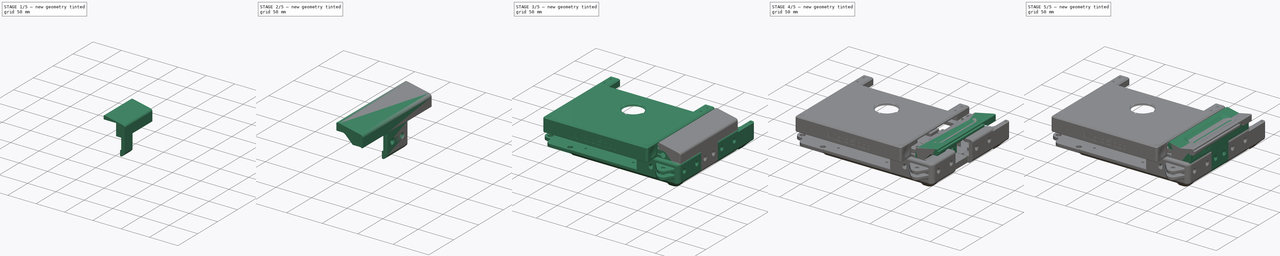
[diagram: build sequence overview — one tinted view per stage of 5, left to right]
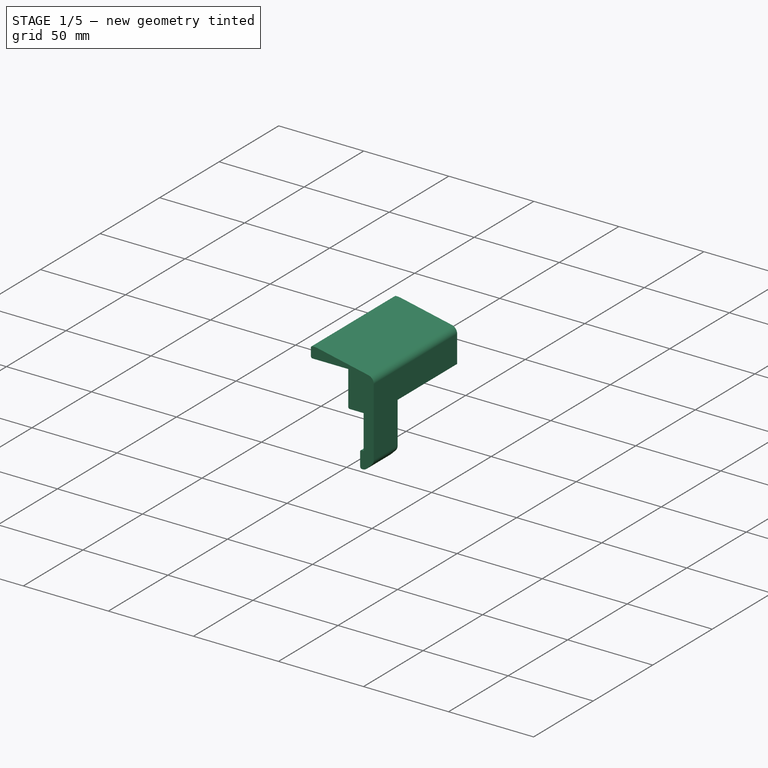
[diagram: stage 1 of 5 — iso view after this stage's code; geometry added in this stage tinted green]
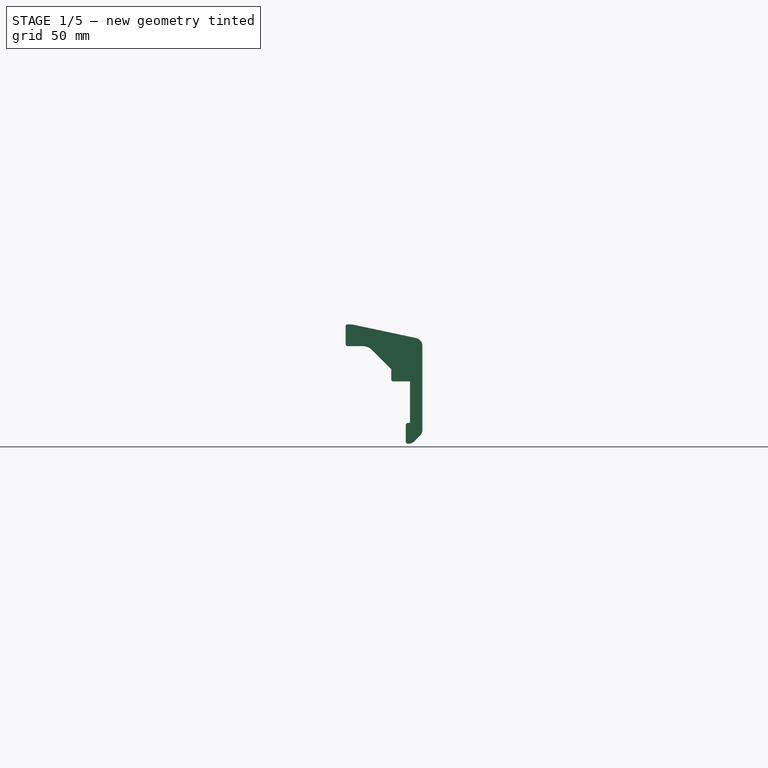
[diagram: stage 1 of 5 — front view after this stage's code; geometry added in this stage tinted green]
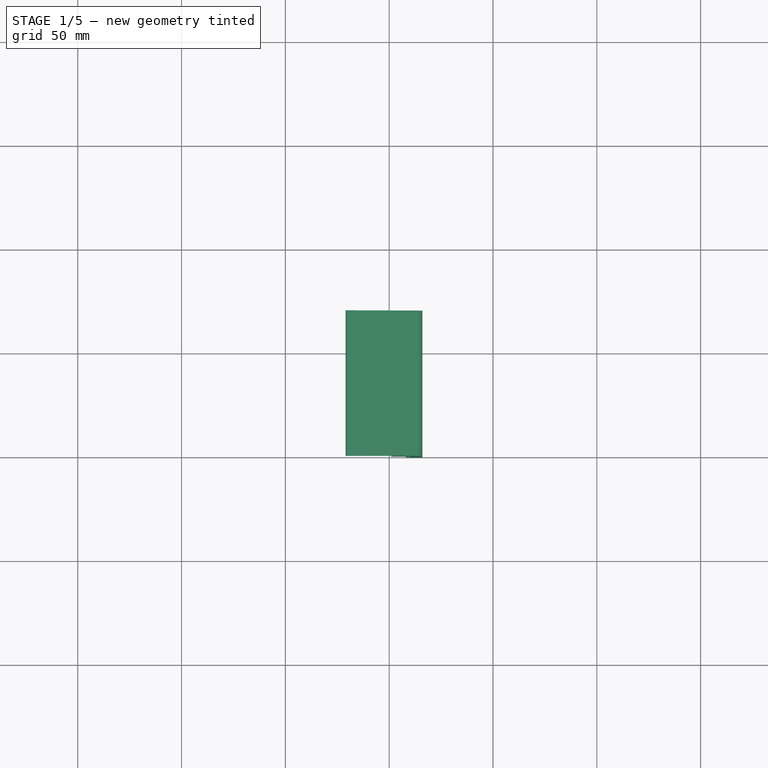
[diagram: stage 1 of 5 — top view after this stage's code; geometry added in this stage tinted green]
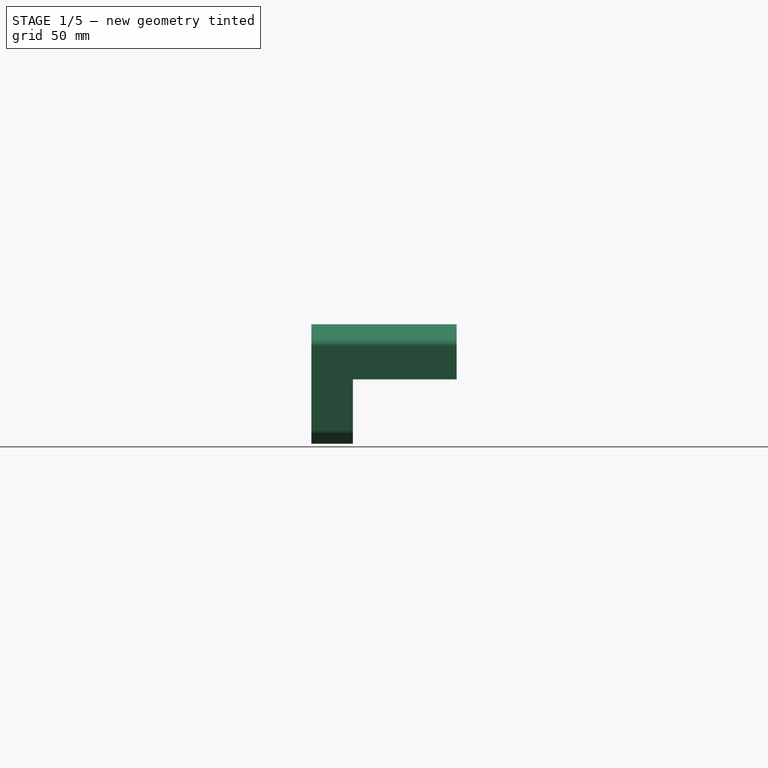
[diagram: stage 1 of 5 — right view after this stage's code; geometry added in this stage tinted green]
FCSTD DOCUMENT  (FreeCAD 0.16RUnknown)
Label: AxisShield
License: All rights reserved
LicenseURL: http://en.wikipedia.org/wiki/All_rights_reserved
objects: Part::FeaturePython×17, Part::Cut×8, Sketcher::SketchObject×6, Part::Feature×5, PartDesign::Pad×4, Part::Fillet×4, App::DocumentObjectGroup×3, Part::Box×2, PartDesign::Revolution×2, Part::Mirroring×2, Spreadsheet::Sheet×1, Part::Cylinder×1, Part::Part2DObjectPython×1, Part::Extrusion×1, Part::MultiFuse×1
note: 60 computed .brp shape members not serialized (recipe doc carries the construction recipe); baked Part::Feature solids carry a one-line shape summary decoded from their .brp

FEATURE [Part::Feature] Clone009001  label="Clone of LM8UU005"
  Placement = pos=(-110,0,-10) rot=(0,0,1;0rad)
  shape: bbox 15 x 24 x 15 mm, 3 faces (baked)
FEATURE [Part::Feature] Clone008001  label="Clone of LM8UU006"
  Placement = pos=(-110,0,-10) rot=(0,0,1;0rad)
  shape: bbox 15 x 24 x 15 mm, 3 faces (baked)
FEATURE [Part::Feature] Part__Mirroring002001  label="T slot extrusion 20x20x140.001 (Mirror #1)001"
  Placement = pos=(-110,0,-10) rot=(0,0,1;0rad)
  shape: bbox 20 x 140 x 20 mm, 51 faces (baked)
FEATURE [Part::Feature] Part__Mirroring001001  label="YBar (Mirror #2)001"
  Placement = pos=(-110,0,-10) rot=(0,0,1;0rad)
  shape: bbox 8 x 140 x 8 mm, 3 faces (baked)
FEATURE [Part::Feature] Part__Mirroring003001  label="4018X SNGL (Mirror #4)001"
  Placement = pos=(-110,0,-10) rot=(0,0,1;0rad)
  shape: bbox 40.13 x 132.8 x 41.15 mm, 30 faces (baked)
FEATURE [Sketcher::SketchObject] Sketch  label="Base"
  Placement = pos=(0,0,0) rot=(1,0,0;1.5708rad)
  sketch-geometry (14):
    g0: LineSegment StartX=-16.9774 StartY=37.2487 StartZ=0 EndX=12.8316 EndY=30.9126 EndZ=0
    g1: LineSegment StartX=16 StartY=27 StartZ=0 EndX=16 EndY=-13.3431 EndZ=0
    g2: LineSegment StartX=10 StartY=-10 StartZ=0 EndX=10 EndY=10 EndZ=0
    g3: LineSegment StartX=10 StartY=10 StartZ=0 EndX=-21 EndY=10 EndZ=0
    g4: LineSegment StartX=-21 StartY=10 StartZ=0 EndX=-21 EndY=37.3837 EndZ=0
    g5: ArcOfCircle CenterX=-19.3684 CenterY=26 CenterZ=0 NormalX=0 NormalY=0 NormalZ=1 Radius=11.5 StartAngle=1.36136 EndAngle=1.71316
    g6: ArcOfCircle CenterX=12 CenterY=27 CenterZ=0 NormalX=0 NormalY=0 NormalZ=1 Radius=4 StartAngle=6.28319 EndAngle=7.64454
    g7: LineSegment StartX=10 StartY=-10 StartZ=0 EndX=8 EndY=-10 EndZ=0
    g8: LineSegment StartX=8 StartY=-10 StartZ=0 EndX=8 EndY=-20 EndZ=0
    g9: LineSegment StartX=8 StartY=-20 StartZ=0 EndX=9.34315 EndY=-20 EndZ=0
    g10: LineSegment StartX=12.1716 StartY=-18.8284 StartZ=0 EndX=14.8284 EndY=-16.1716 EndZ=0
    g11: ArcOfCircle CenterX=9.34315 CenterY=-16 CenterZ=0 NormalX=0 NormalY=0 NormalZ=1 Radius=4 StartAngle=4.71239 EndAngle=5.49779
    g12: ArcOfCircle CenterX=12 CenterY=-13.3431 CenterZ=0 NormalX=0 NormalY=0 NormalZ=1 Radius=4 StartAngle=5.49779 EndAngle=6.28319
    g13: GeomPoint [constr] X=11 Y=-20 Z=0
  constraints (41):
    c: Coincident(g2,g3)
    c: Coincident(g3,g4)
    c: Horizontal(g3)
    c: Vertical(g2)
    c: Vertical(g1)
    c: Vertical(g4)
    c: DistanceY(g5) = 26
    c: Coincident(g0,g5)
    c: Tangent(g5,g0)
    c: DistanceX(g2) = 10
    c: DistanceY(g2) = 10
    c: Coincident(g4,g5)
    c: Angle(g0) = -0.20944  'ShieldAngle'
    c: Coincident(g6,g1)  'Constraint18'
    c: Coincident(g6,g0)  'Constraint17'
    c: Tangent(g6,g1)  'Constraint21'
    c: Tangent(g0,g6)  'Constraint20'
    c: Radius(g6) = 4  'Constraint19'
    c: DistanceY(g6) = 27
    c: DistanceX(g3,g3) = 31
    c: Radius(g5) = 11.5
    c: Coincident(g7,g8)
    c: Coincident(g8,g9)
    c: Horizontal(g9)
    c: Coincident(g2,g7)
    c: Horizontal(g7)
    c: Vertical(g8)
    c: DistanceY(g2,g2) = 20
    c: DistanceX(g7,g7) = 2
    c: Angle(g1,g10) = 2.35619
    c: DistanceY(g8,g8) = 10
    c: Tangent(g9,g11) = -1.5708
    c: Tangent(g10,g11) = -1.5708
    c: Radius(g11) = 4
    c: Tangent(g10,g12) = -1.5708
    c: Tangent(g1,g12) = 1.5708
    c: Radius(g12) = 4
    c: DistanceX(g1) = 16
    c: PointOnObject(g13,g9)
    c: PointOnObject(g13,g10)
    c: DistanceX(g13) = 11
FEATURE [PartDesign::Pad] Pad  label="Base001"
  Length = 70
  Length2 = 100
  Placement = pos=(0,0,0) rot=(1,0,0;1.5708rad)
  Reversed = true
  Sketch = -> Sketch
  Type = 0
FEATURE [Part::Box] Box001  label="AxisSpace"
  Height = 39
  Length = 31
  Placement = pos=(1,0,0) rot=(0,-1,0;1.5708rad)
  Width = 50
FEATURE [Part::Cut] Cut005  label="AxisSpaceCut"
  Base = -> Pad
  Tool = -> Box001
FEATURE [PartDesign::Pad] Pad001  label="AxisEndSpace001"
  Length = 50
  Length2 = 100
  Placement = pos=(0,50,0) rot=(1,0,0;1.5708rad)
  Reversed = true
  Sketch = -> Sketch003
  Type = 0
FEATURE [Part::Cut] Cut006  label="AxisEndCut"
  Base = -> Cut005
  Tool = -> Pad001
FEATURE [Part::Fillet] Fillet005  label="RadialFillet"
  Base = -> Cut006
  Edges = 7 edges r=1: [Edge5,Edge9,Edge11,Edge39,Edge53,Edge55,Edge56]
FEATURE [PartDesign::Pad] Pad002  label="BackFrameSpace001"
  Length = 50
  Length2 = 100
  Placement = pos=(0,70,0) rot=(0,0.707107,0.707107;3.14159rad)
  Reversed = true
  Sketch = -> Sketch005
  Type = 0
FEATURE [Part::Cut] Cut007  label="BackFrameCut"
  Base = -> Fillet005
  Tool = -> Pad002
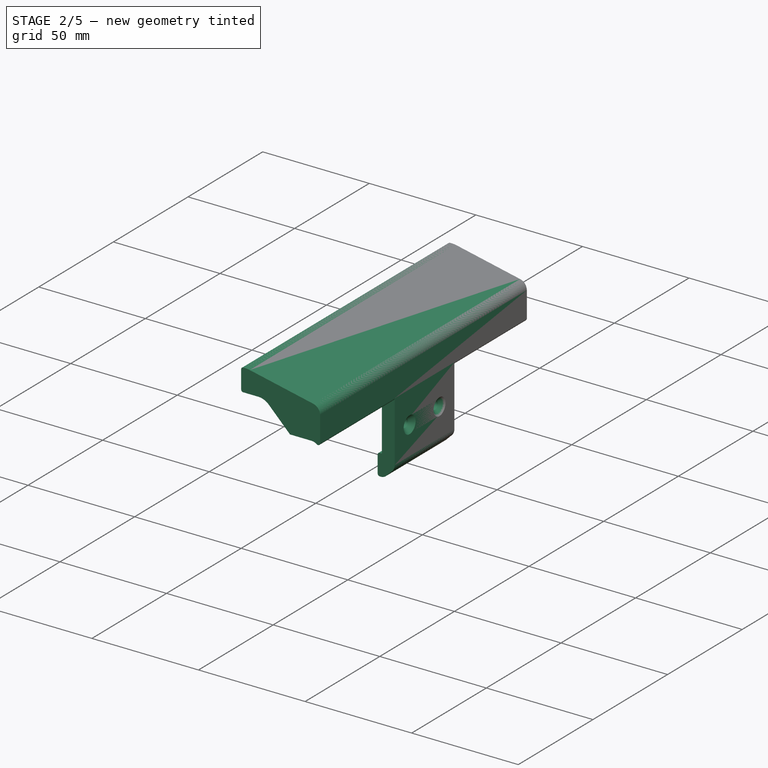
[diagram: stage 2 of 5 — iso view after this stage's code; geometry added in this stage tinted green]
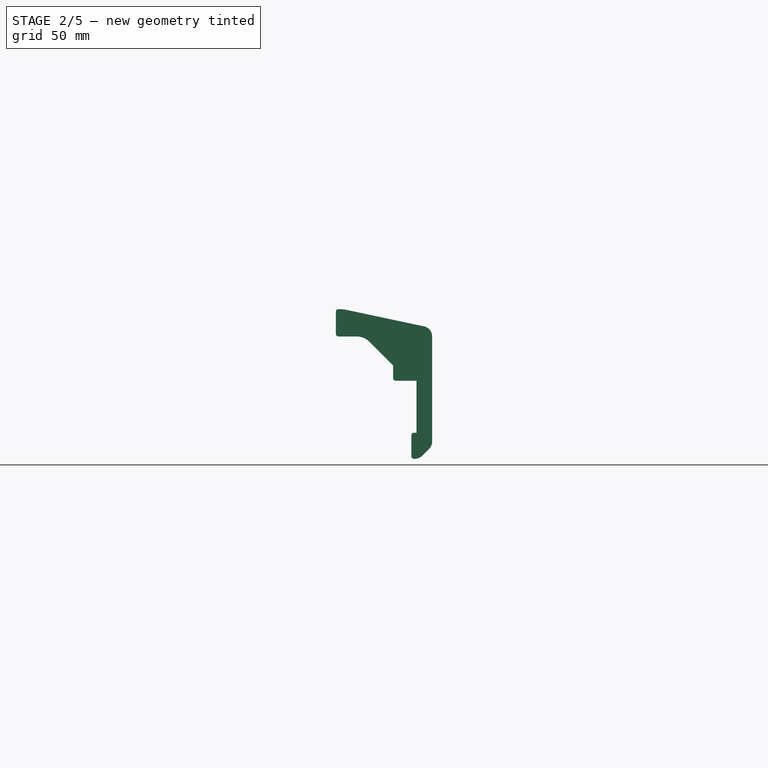
[diagram: stage 2 of 5 — front view after this stage's code; geometry added in this stage tinted green]
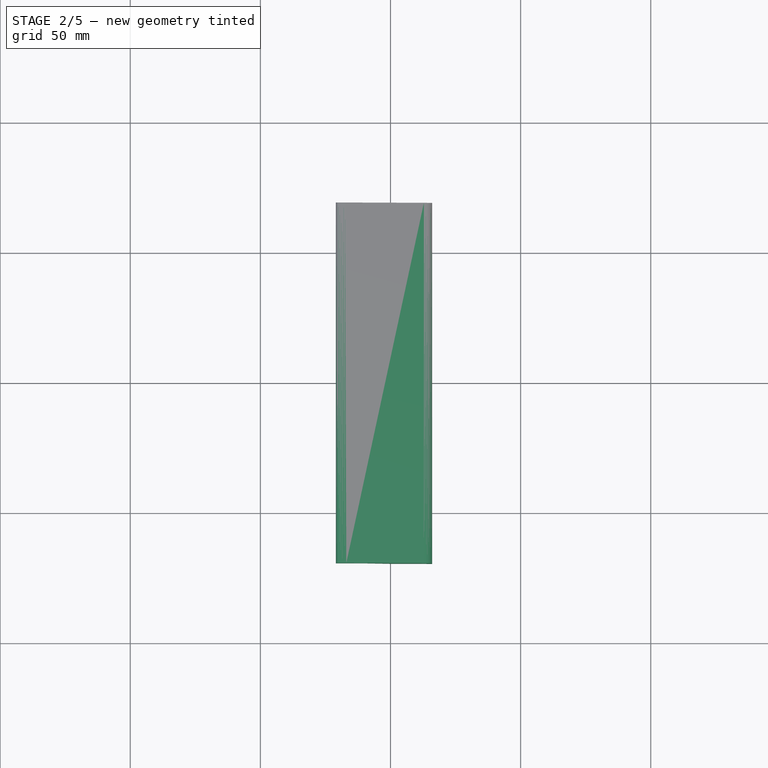
[diagram: stage 2 of 5 — top view after this stage's code; geometry added in this stage tinted green]
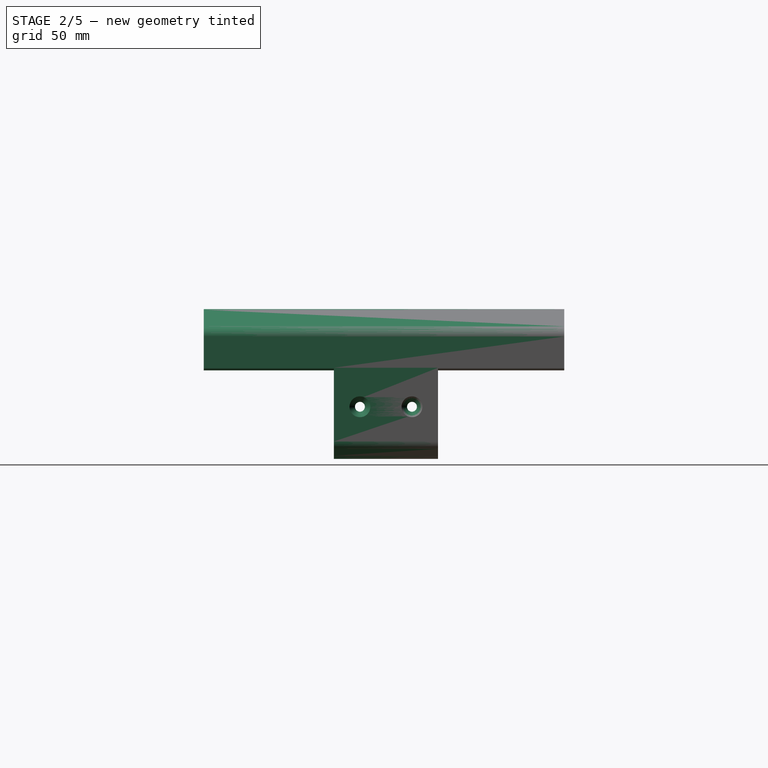
[diagram: stage 2 of 5 — right view after this stage's code; geometry added in this stage tinted green]
FEATURE [Spreadsheet::Sheet] Spreadsheet  label="pars"
  cells = A1=Bolts and Nuts; B1=Value; D1=Components; E1=Value; A2=Thread Tight Tolerance (Radius, ratio); B2(ThrTighRatio)=0.96; D2=Tight Cilinder Tolerances (Radius, mm); E2(CilTight)=0.1; A3=Thread Tight Tolerance (Radius, mm); B3(ThrTightmm)=0.1; D3=Loose Cilinder Tolerances (Radius, mm); E3(CilLoose)=0.1; A5=Nut Slot Width Clearance (mm); B5(NutWidthClearmm)=0.1; A6=Nut Slot Thickess Clearance (mm); B6(NutThickClearmm)=0.1; A13=Particular parameters; B13=Value; A14=Upper Cover Limit Clearance; B14(UCLClear)=1
FEATURE [Sketcher::SketchObject] Sketch003  label="AxisEndSpace"
  Placement = pos=(0,50,0) rot=(1,0,0;1.5708rad)
  sketch-geometry (6):
    g0: ArcOfCircle CenterX=-13 CenterY=20 CenterZ=0 NormalX=0 NormalY=0 NormalZ=1 Radius=7 StartAngle=0.785393 EndAngle=1.5708
    g1: LineSegment StartX=-8.05023 StartY=24.9497 StartZ=0 EndX=2.89949 EndY=14 EndZ=0
    g2: LineSegment StartX=-37.1005 StartY=6 StartZ=0 EndX=-37.1005 EndY=27 EndZ=0
    g3: LineSegment StartX=-37.1005 StartY=6 StartZ=0 EndX=2.89949 EndY=6 EndZ=0
    g4: LineSegment StartX=2.89949 StartY=6 StartZ=0 EndX=2.89949 EndY=14 EndZ=0
    g5: LineSegment StartX=-37.1005 StartY=27 StartZ=0 EndX=-13 EndY=27 EndZ=0
  constraints (19):
    c: DistanceY(g0) = 20
    c: DistanceX(g0) = -13
    c: Coincident(g0,g1)
    c: Tangent(g0,g1)
    c: Vertical(g2)
    c: Radius(g0) = 7
    c: Angle(g1) = -0.785398
    c: DistanceY(g1) = 14
    c: Coincident(g3,g4)
    c: Coincident(g4,g1)
    c: Coincident(g3,g2)
    c: Horizontal(g3)
    c: Vertical(g4)
    c: DistanceY(g2) = 6
    c: DistanceX(g3,g3) = 40
    c: Horizontal(g5)
    c: Coincident(g5,g0)
    c: Tangent(g5,g0)
    c: Coincident(g5,g2)
FEATURE [Sketcher::SketchObject] Sketch005  label="BackFrameSpace"
  Placement = pos=(0,70,0) rot=(0,0.707107,0.707107;3.14159rad)
  sketch-geometry (5):
    g0: LineSegment StartX=15 StartY=-30 StartZ=0 EndX=-16 EndY=-30 EndZ=0
    g1: LineSegment StartX=-16 StartY=-30 StartZ=0 EndX=-16 EndY=11 EndZ=0
    g2: LineSegment StartX=-12 StartY=15 StartZ=0 EndX=15 EndY=15 EndZ=0
    g3: LineSegment StartX=15 StartY=15 StartZ=0 EndX=15 EndY=-30 EndZ=0
    g4: ArcOfCircle CenterX=-12 CenterY=11 CenterZ=0 NormalX=0 NormalY=0 NormalZ=1 Radius=4 StartAngle=1.5708 EndAngle=3.14159
  constraints (14):
    c: Coincident(g0,g1)
    c: Coincident(g2,g3)
    c: Coincident(g3,g0)
    c: Horizontal(g0)
    c: Horizontal(g2)
    c: Vertical(g1)
    c: Vertical(g3)
    c: DistanceY(g2) = 15
    c: DistanceX(g0) = -16
    c: DistanceX(g2) = 15
    c: DistanceY(g0) = -30
    c: Tangent(g2,g4) = 1.5708
    c: Tangent(g1,g4) = 1.5708
    c: Radius(g4) = 4
FEATURE [Part::Box] Box  label="NemaCut"
  Height = 54
  Length = 40
  Placement = pos=(16,110,10) rot=(0,0,1;3.14159rad)
  Width = 41.5
FEATURE [Sketcher::SketchObject] Sketch007  label="M4DIN7991Bolt"
  expr: Constraints[10] = 2 - pars.CilTight
  sketch-geometry (5):
    g0: LineSegment StartX=0 StartY=0 StartZ=0 EndX=4 EndY=0 EndZ=0
    g1: LineSegment StartX=4 StartY=0 StartZ=0 EndX=1.9 EndY=-2.1 EndZ=0
    g2: LineSegment StartX=1.9 StartY=-2.1 StartZ=0 EndX=1.9 EndY=-25 EndZ=0
    g3: LineSegment StartX=1.9 StartY=-25 StartZ=0 EndX=0 EndY=-25 EndZ=0
    g4: LineSegment StartX=0 StartY=-25 StartZ=0 EndX=0 EndY=0 EndZ=0
  constraints (14):
    c: Coincident(g0,g1)
    c: Coincident(g1,g2)
    c: Coincident(g2,g3)
    c: Coincident(g3,g4)
    c: Coincident(g4,g0)
    c: Vertical(g4)
    c: Vertical(g2)
    c: Horizontal(g0)
    c: Horizontal(g3)
    c: Coincident(g0,g-1)
    c: DistanceX(g3,g3) = 1.9
    c: Angle(g0,g1) = 0.785398
    c: DistanceX(g0,g0) = 4
    c: DistanceY(g4,g4) = 25
FEATURE [PartDesign::Revolution] Revolution001  label="M4DIN7991Bolt001"
  Angle = 360
  Axis = (0,1,0)
  Base = (0,0,0)
  ReferenceAxis = -> Sketch007 [V_Axis]
  Reversed = true
  Sketch = -> Sketch007
FEATURE [App::DocumentObjectGroup] Group001  label="Component_src"
  Group = -> [Revolution,Cylinder,ShapeString,Extrude,Revolution001]
FEATURE [Part::FeaturePython] Clone022003003008002009024020009009  label="Clone of M4DIN7991Bolt001"  # Draft clone (typed FeaturePython)
  Objects = -> [Revolution001]
  Placement = pos=(16,10,0) rot=(0,0,-1;1.5708rad)
  Scale = (1,1,1)
FEATURE [Part::Fillet] Fillet002  label="AntiCreaseFillet"
  Base = -> Cut007
  Edges = 1 edges r=1: [Edge43]
FEATURE [Part::Cut] Cut  label="FixBoltCut"
  Base = -> Fillet002
  Tool = -> Clone022003003008002009024020009009
FEATURE [Part::Mirroring] Part__Mirroring  label="FixBoltCut (Mirror #1)"
  Base = (0,0,0)
  Normal = (0,1,0)
  Source = -> Cut
FEATURE [Part::MultiFuse] Fusion  label="Mirroring"
  Shapes = -> [Part__Mirroring,Cut]
FEATURE [Part::Cut] Cut001
  Base = -> Fusion
  Tool = -> Box
FEATURE [Part::FeaturePython] refine002  label="refine_Cut001"  # WARN: FeaturePython — macro-defined, semantics opaque (R4)
  Base = -> Cut001
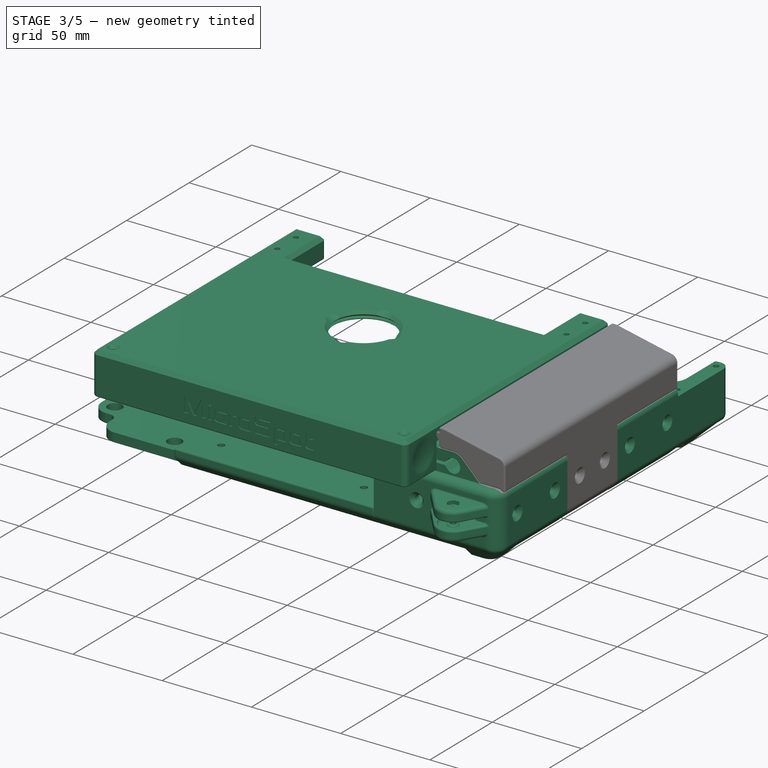
[diagram: stage 3 of 5 — iso view after this stage's code; geometry added in this stage tinted green]
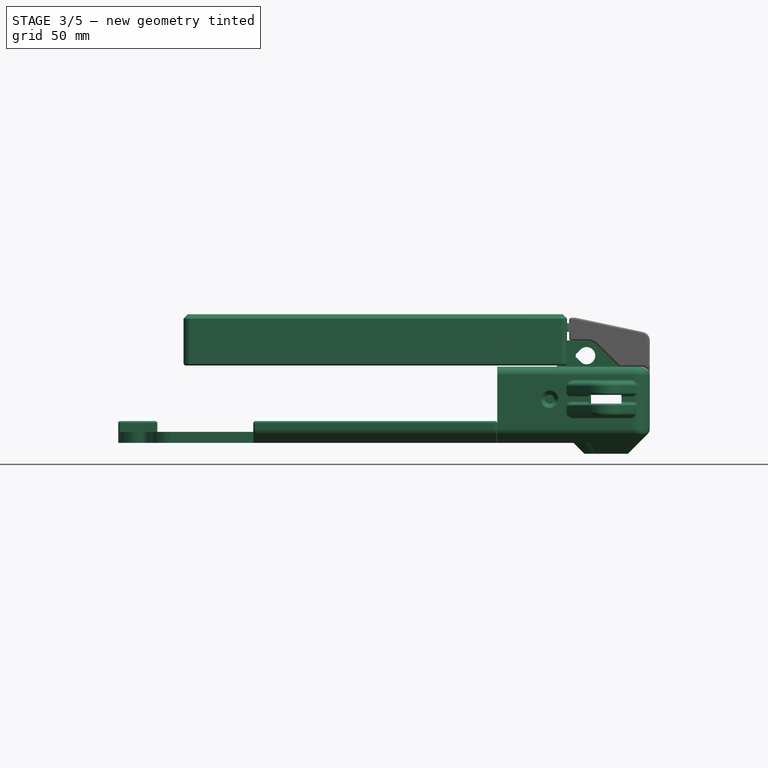
[diagram: stage 3 of 5 — front view after this stage's code; geometry added in this stage tinted green]
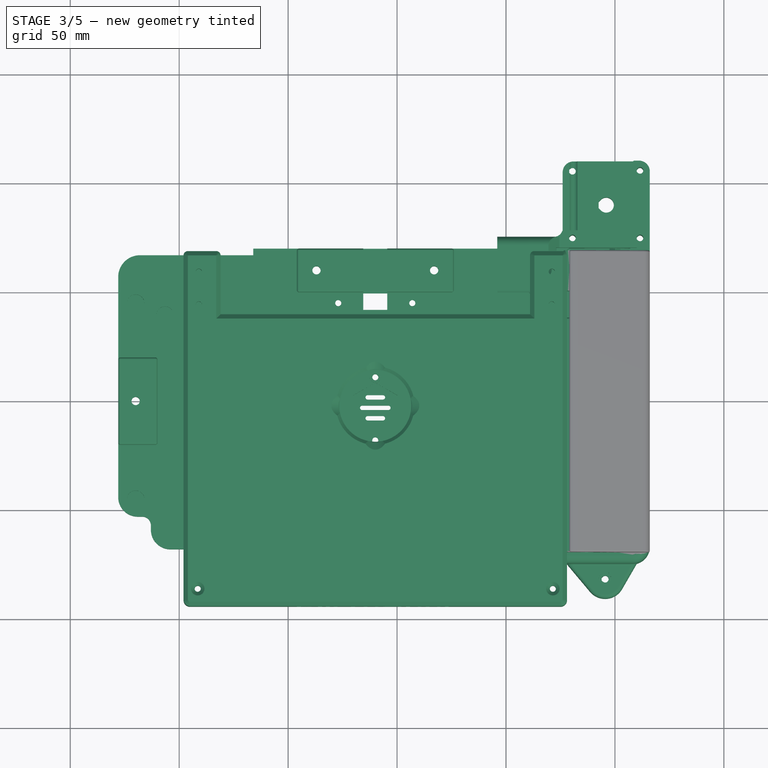
[diagram: stage 3 of 5 — top view after this stage's code; geometry added in this stage tinted green]
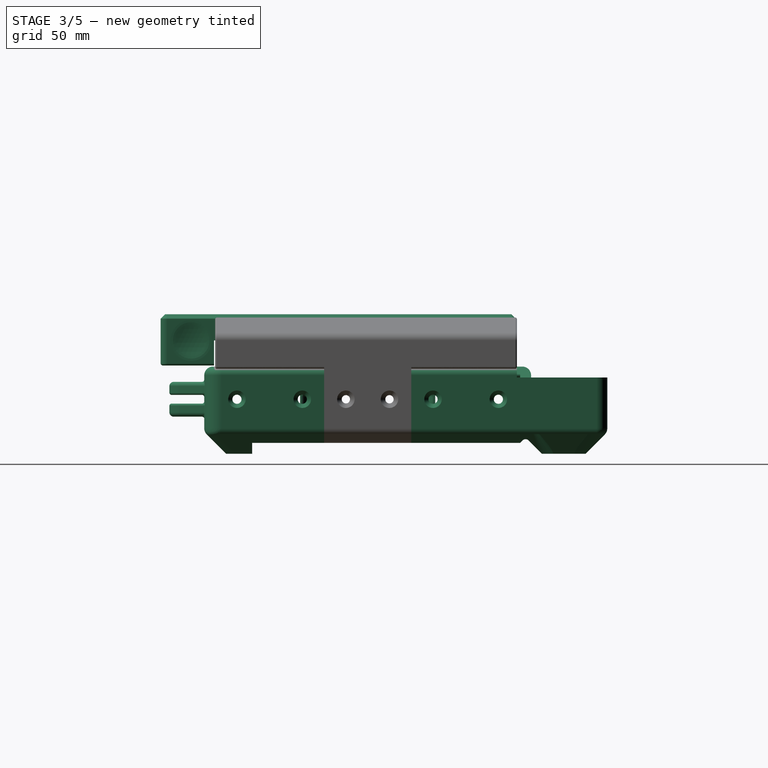
[diagram: stage 3 of 5 — right view after this stage's code; geometry added in this stage tinted green]
FEATURE [Part::FeaturePython] RYCarriage_step1_01  label="RYCarriage"  # a2plus imported part (geometry in sourceFile) (typed FeaturePython)
  Placement = pos=(-40,0,0) rot=(0,0,1;0rad)
  fixedPosition = true
  sourceFile = ./../../Step/Printed/Axes/YCarriage/RYCarriage.step
  timeLastImport = 1.5206e+09
  updateColors = true
FEATURE [Part::FeaturePython] FrontCorner_01  # a2plus imported part (geometry in sourceFile) (typed FeaturePython)
  Placement = pos=(0,-82,0) rot=(0,0,1;0rad)
  fixedPosition = false
  sourceFile = ./FrontCorner.fcstd
  timeLastImport = 1.52267e+09
  updateColors = true
FEATURE [Part::FeaturePython] LowerCover_01  # a2plus imported part (geometry in sourceFile) (typed FeaturePython)
  Placement = pos=(-110,-3,-15) rot=(0,0,1;0rad)
  fixedPosition = false
  sourceFile = ./LowerCover.fcstd
  timeLastImport = 1.52951e+09
  updateColors = true
FEATURE [Part::FeaturePython] BackCorner_01  # a2plus imported part (geometry in sourceFile) (typed FeaturePython)
  Placement = pos=(-4,90,10) rot=(0,0,1;0rad)
  fixedPosition = false
  sourceFile = ./BackCorner.fcstd
  timeLastImport = 1.52292e+09
  updateColors = true
FEATURE [Part::FeaturePython] UpperCover_01  label="UpperCover"  # a2plus imported part (geometry in sourceFile) (typed FeaturePython)
  Placement = pos=(-110,-3,35) rot=(0,0,1;0rad)
  fixedPosition = false
  sourceFile = ./../UpperLid/UpperCover.fcstd
  timeLastImport = 1.52943e+09
  updateColors = true
FEATURE [App::DocumentObjectGroup] Group  label="Reference"
  Group = -> [Clone009001,Clone008001,Part__Mirroring002001,Part__Mirroring001001,Part__Mirroring003001,FrontCorner_01,LowerCover_01,BackCorner_01,RYCarriage_step1_01,UpperCover_01]
FEATURE [Sketcher::SketchObject] Sketch008  label="UpperCoverLimit"
  Placement = pos=(0,-70,0) rot=(1,0,0;1.5708rad)
  Support = -> refine002 [Face5]
  sketch-geometry (4):
    g0: LineSegment StartX=-20 StartY=35 StartZ=0 EndX=-24 EndY=35 EndZ=0
    g1: LineSegment StartX=-24 StartY=35 StartZ=0 EndX=-24 EndY=31 EndZ=0
    g2: LineSegment StartX=-24 StartY=31 StartZ=0 EndX=-20 EndY=31 EndZ=0
    g3: LineSegment StartX=-20 StartY=31 StartZ=0 EndX=-20 EndY=35 EndZ=0
  constraints (12):
    c: Coincident(g0,g1)
    c: Coincident(g1,g2)
    c: Coincident(g2,g3)
    c: Coincident(g3,g0)
    c: Horizontal(g0)
    c: Horizontal(g2)
    c: Vertical(g1)
    c: Vertical(g3)
    c: DistanceY(g0) = 35
    c: DistanceY(g1,g1) = 4
    c: DistanceX(g0) = -20
    c: DistanceX(g0,g0) = 4
FEATURE [PartDesign::Pad] Pad003  label="UpperCoverLimit001"
  Length = 107.5
  Length2 = 100
  Reversed = true
  Sketch = -> Sketch008
  Type = 0
  expr: Length = 108.5 - pars.UCLClear
FEATURE [Part::FeaturePython] refine003  label="refine_UpperCoverLimit001"  # WARN: FeaturePython — macro-defined, semantics opaque (R4)
  Base = -> Pad003
FEATURE [Part::Fillet] Fillet003  label="NiceFillet002"
  Base = -> refine003
  Edges = 10 edges r=0.8: [Edge19,Edge29,Edge30,Edge31,Edge32,Edge33,Edge34,Edge59,Edge80,Edge137]
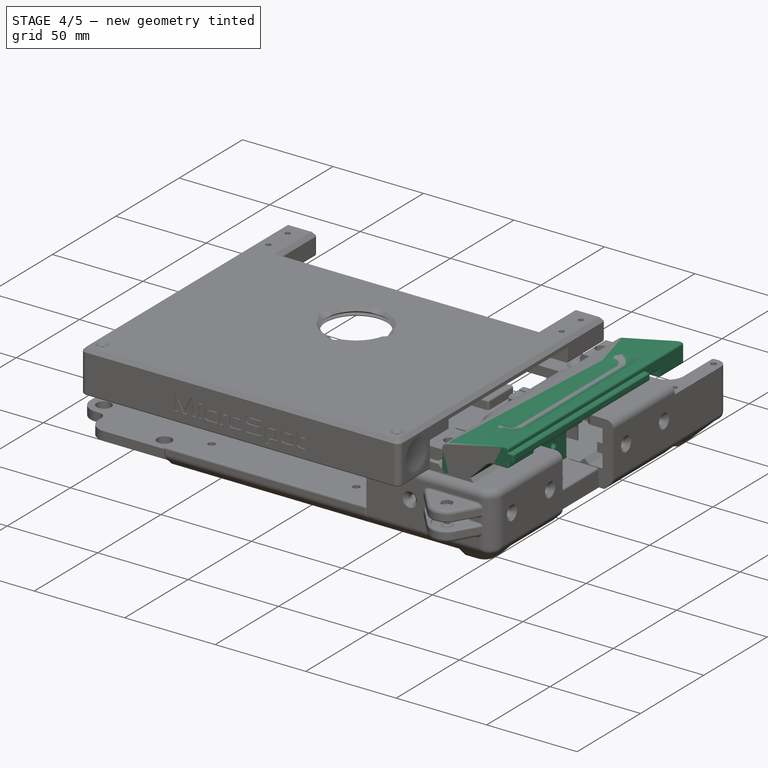
[diagram: stage 4 of 5 — iso view after this stage's code; geometry added in this stage tinted green]
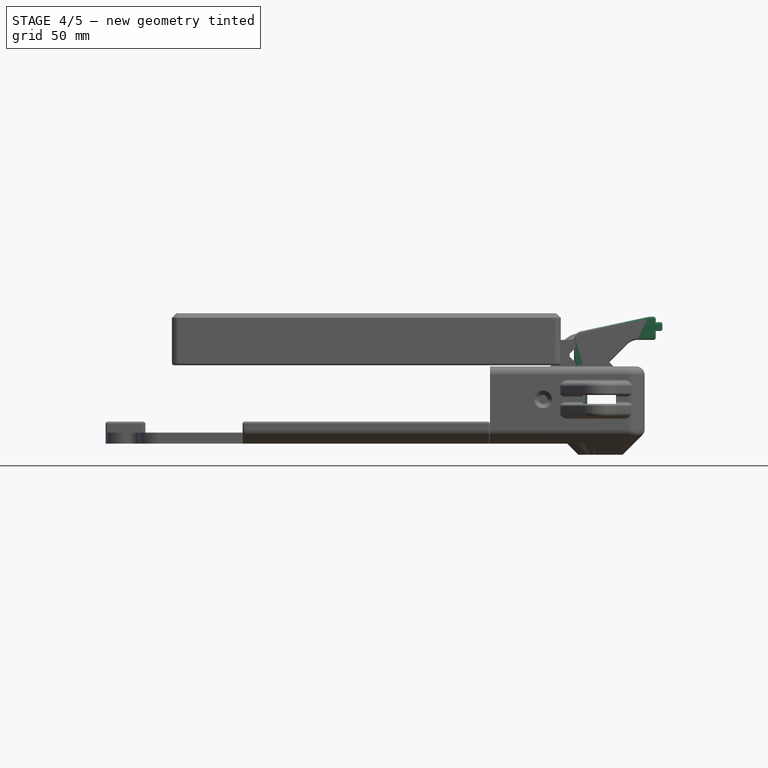
[diagram: stage 4 of 5 — front view after this stage's code; geometry added in this stage tinted green]
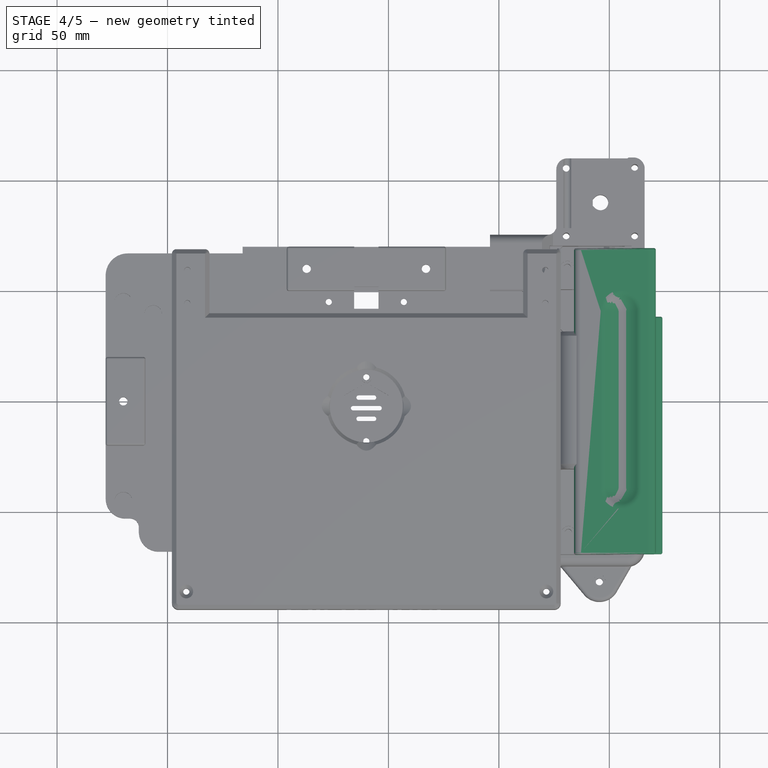
[diagram: stage 4 of 5 — top view after this stage's code; geometry added in this stage tinted green]
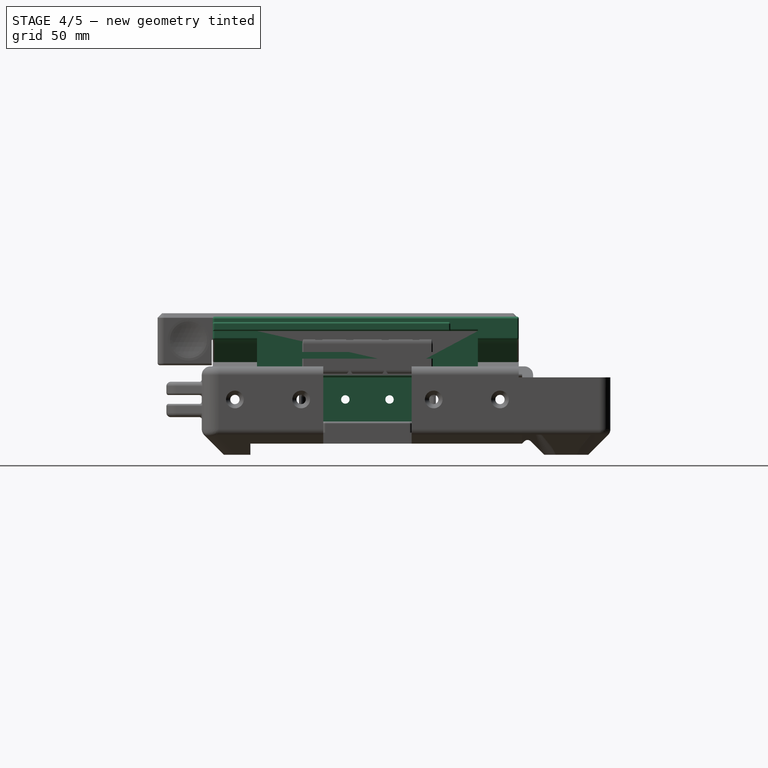
[diagram: stage 4 of 5 — right view after this stage's code; geometry added in this stage tinted green]
FEATURE [Sketcher::SketchObject] Sketch006  label="HandGrip"
  Placement = pos=(0,0,0) rot=(0.57735,0.57735,0.57735;2.0944rad)
  sketch-geometry (4):
    g0: ArcOfCircle CenterX=-40 CenterY=0 CenterZ=0 NormalX=0 NormalY=0 NormalZ=1 Radius=14 StartAngle=1.5708 EndAngle=3.14159
    g1: ArcOfCircle CenterX=40 CenterY=0 CenterZ=0 NormalX=0 NormalY=0 NormalZ=1 Radius=14 StartAngle=0 EndAngle=1.5708
    g2: LineSegment StartX=-54 StartY=0 StartZ=0 EndX=54 EndY=0 EndZ=0
    g3: LineSegment StartX=-40 StartY=14 StartZ=0 EndX=40 EndY=14 EndZ=0
  constraints (11):
    c: Tangent(g0,g3) = 1.5708
    c: Tangent(g3,g1) = 1.5708
    c: Horizontal(g2)
    c: Equal(g0,g1)
    c: PointOnObject(g0,g-1)
    c: Symmetric(g1,g0,g-2)
    c: DistanceX(g0,g1) = 80
    c: Radius(g1) = 14
    c: Coincident(g0,g2)
    c: Coincident(g1,g2)
    c: PointOnObject(g0,g-1)
FEATURE [PartDesign::Revolution] Revolution  label="HandGrip001"
  Angle = 360
  Axis = (0,1,0)
  Base = (0,0,0)
  Placement = pos=(0,0,0) rot=(0.57735,0.57735,0.57735;2.0944rad)
  ReferenceAxis = -> Sketch006 [H_Axis]
  Sketch = -> Sketch006
FEATURE [Part::FeaturePython] Clone009003  label="Clone of HandGrip001"  # Draft clone (typed FeaturePython)
  Objects = -> [Revolution]
  Placement = pos=(-3,0,46) rot=(0.57735,0.57735,0.57735;2.0944rad)
  Scale = (1,1,1)
FEATURE [Part::Part2DObjectPython] ShapeString  label="Sign"  # Draft 2D object (typed FeaturePython)
  FontFile = ./../../Fonts/Xolonium-Regular.otf
  Size = 3
  String = MicroSpot
  Tracking = 0
FEATURE [Part::Extrusion] Extrude  label="Sign001"
  Base = -> ShapeString
  Dir = (0,0,0.5)
  Solid = true
FEATURE [Part::FeaturePython] Clone022003003008002009024020009004  label="Clone of Sign002"  # Draft clone (typed FeaturePython)
  Objects = -> [Extrude]
  Placement = pos=(-15.5,-21,19) rot=(0.57735,-0.57735,-0.57735;2.0944rad)
  Scale = (1,1,1)
FEATURE [Part::Cut] Cut002  label="HandGripCut"
  Base = -> Fillet003
  Tool = -> Clone009003
FEATURE [Part::Fillet] Fillet004  label="NiceFillet003"
  Base = -> Cut002
  Edges = 1 edges r=5: [Edge158]
FEATURE [Part::Mirroring] Part__Mirroring003002  label="NiceFillet003 (Mirror #2)"
  Base = (0,0,0)
  Normal = (1,0,0)
  Source = -> Fillet004
FEATURE [Part::FeaturePython] Clone022003003008002009024020009006  label="Lpart"  # Draft clone (typed FeaturePython)
  Objects = -> [Part__Mirroring003002]
  Scale = (1,1,1)
FEATURE [Part::Cut] Cut004  label="LSign"
  Base = -> Clone022003003008002009024020009006
  Tool = -> Clone022003003008002009024020009004
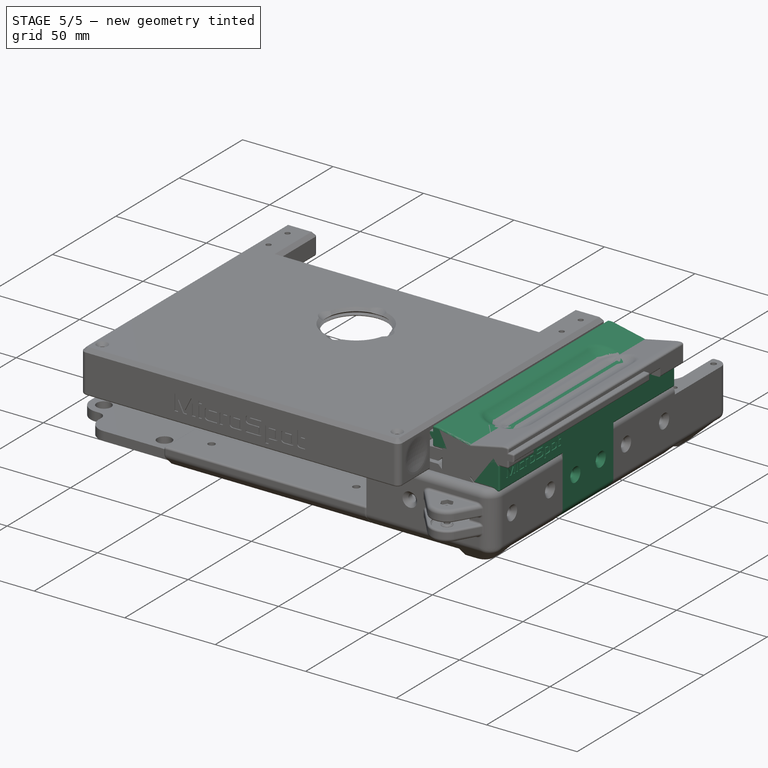
[diagram: stage 5 of 5 — iso view after this stage's code; geometry added in this stage tinted green]
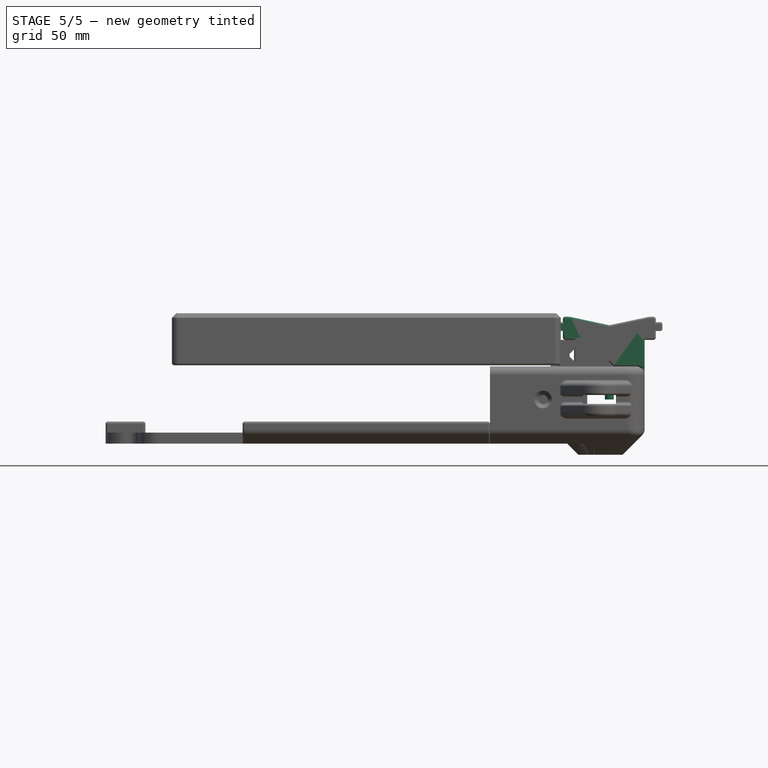
[diagram: stage 5 of 5 — front view after this stage's code; geometry added in this stage tinted green]
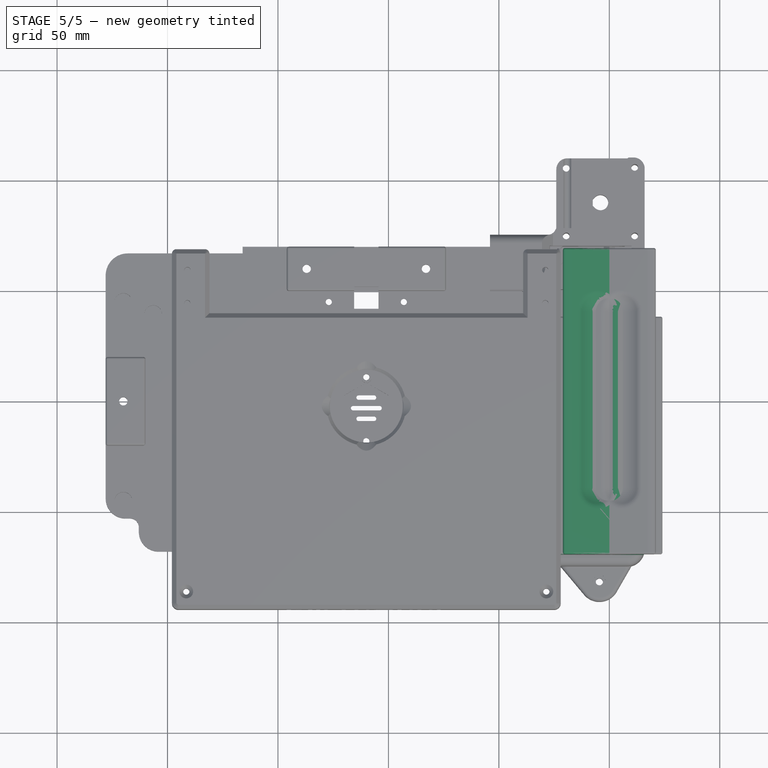
[diagram: stage 5 of 5 — top view after this stage's code; geometry added in this stage tinted green]
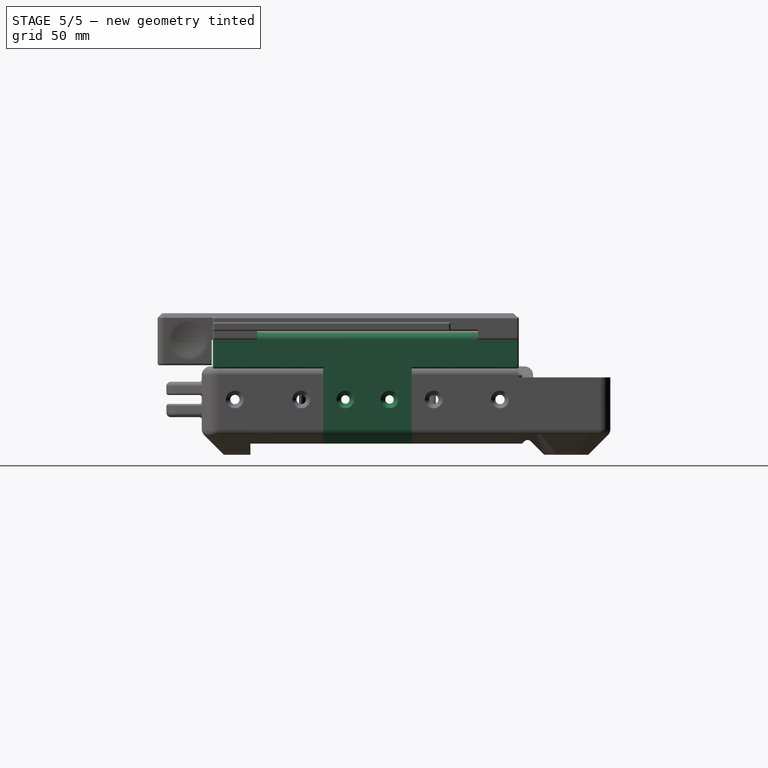
[diagram: stage 5 of 5 — right view after this stage's code; geometry added in this stage tinted green]
FEATURE [Part::Cylinder] Cylinder  label="M4Thread"
  Angle = 360
  Height = 10
  Radius = 2
FEATURE [Part::FeaturePython] Clone022003003008002009024020009003  label="Clone of Sign001"  # Draft clone (typed FeaturePython)
  Objects = -> [Extrude]
  Placement = pos=(15.5,-65,19) rot=(0.57735,0.57735,0.57735;2.0944rad)
  Scale = (1,1,1)
FEATURE [Part::FeaturePython] Clone022003003008002009024020009005  label="Rpart"  # Draft clone (typed FeaturePython)
  Objects = -> [Fillet004]
  Scale = (1,1,1)
FEATURE [Part::Cut] Cut003  label="RSign"
  Base = -> Clone022003003008002009024020009005
  Tool = -> Clone022003003008002009024020009003
FEATURE [Part::FeaturePython] refine  label="refine_RSign"  # WARN: FeaturePython — macro-defined, semantics opaque (R4)
  Base = -> Cut003
FEATURE [Part::FeaturePython] refine001  label="refine_LSign"  # WARN: FeaturePython — macro-defined, semantics opaque (R4)
  Base = -> Cut004
FEATURE [App::DocumentObjectGroup] Grupo  label="src"
  Group = -> [Cut001,Cut002,Fillet004,Part__Mirroring003002,Cut003,Cut004,refine,refine001,Cut006,refine003,refine002]
FEATURE [Part::FeaturePython] Clone  label="RAxisShield"  # Draft clone (typed FeaturePython)
  Objects = -> [refine]
  Scale = (1,1,1)
FEATURE [Part::FeaturePython] Clone022003003008002009024020009010  label="LAxisShield"  # Draft clone (typed FeaturePython)
  Objects = -> [refine001]
  Scale = (1,1,1)
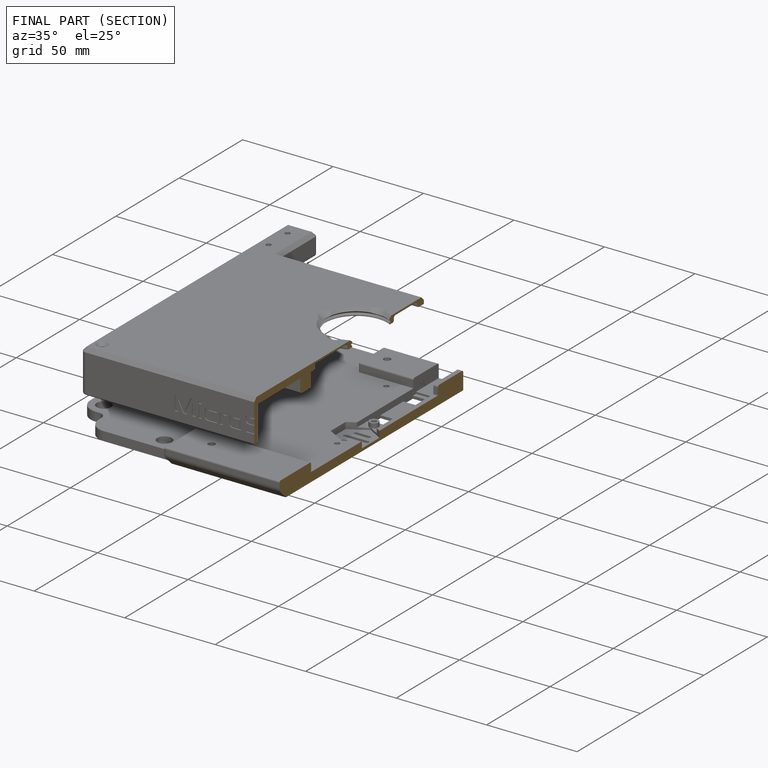
[diagram: finished part — half-section view (interior)]
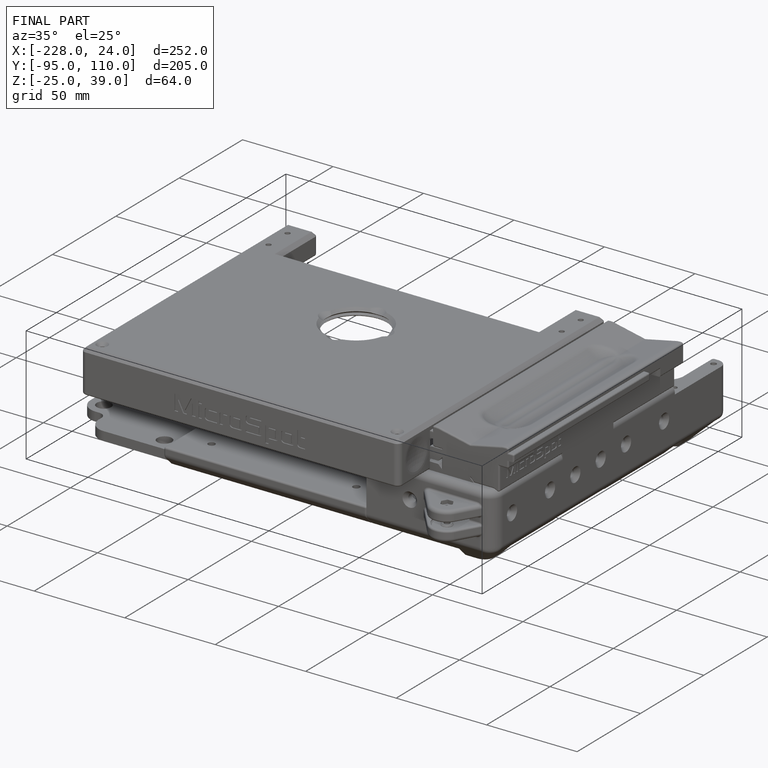
[diagram: finished part — iso view with bounding-box wireframe]
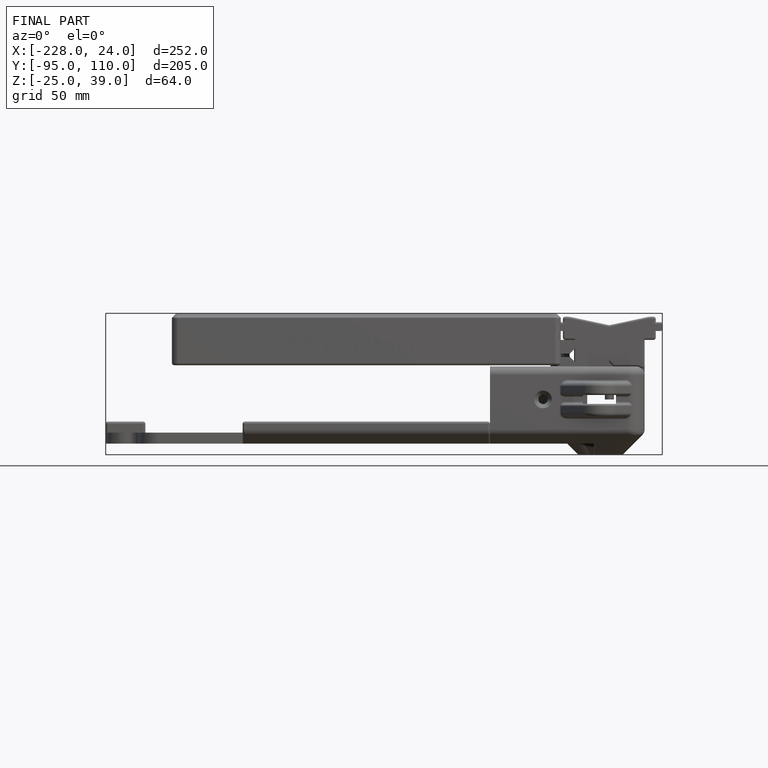
[diagram: finished part — front view with bounding-box wireframe]
